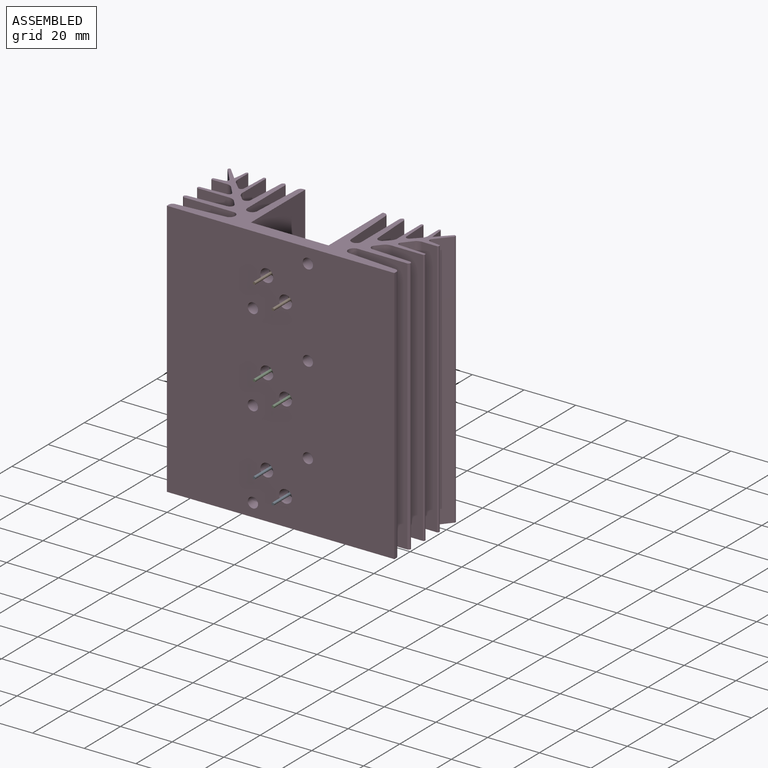
[diagram: assembled view]
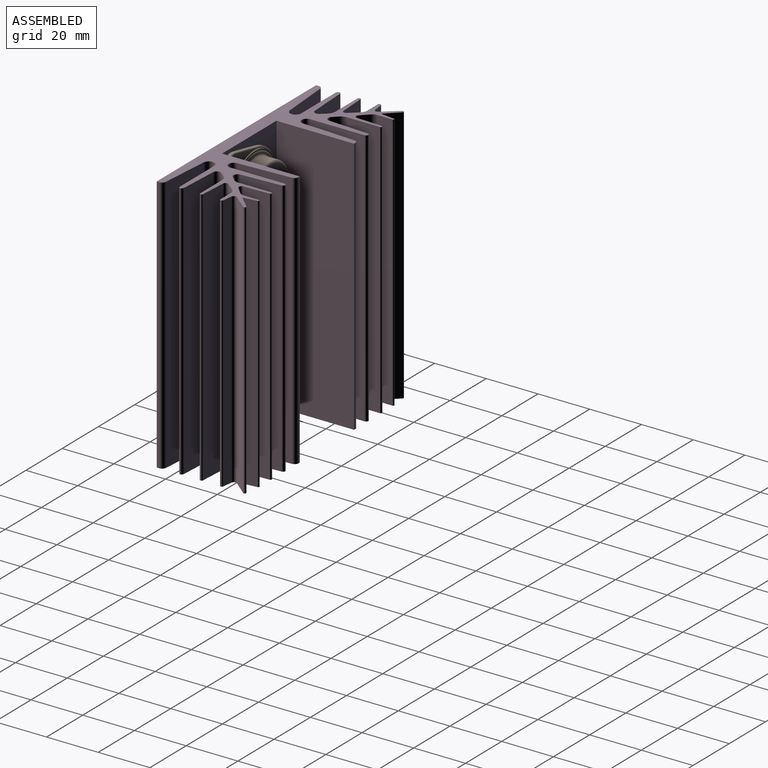
[diagram: assembled view, second angle]
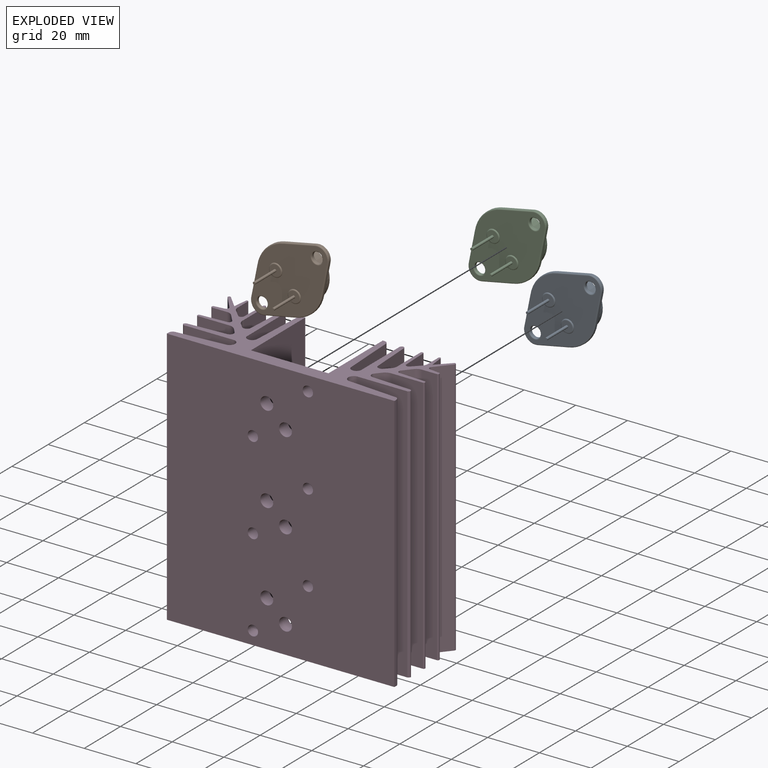
[diagram: exploded view]
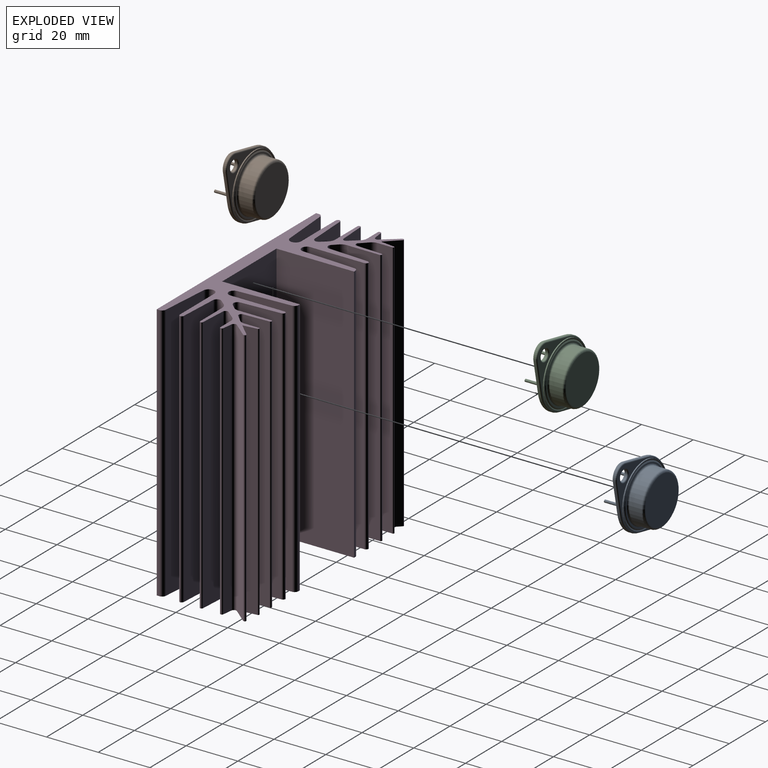
[diagram: exploded view, second angle]
ASSEMBLY  parts=4 mates=3
PART A: 59 faces, bbox 27.6x20.7x39.6 mm
  f0: torus R=2.49mm, axis (0,1,0), area 8.8mm2, adj f20,f25
  f1: torus R=2.49mm, axis (0,1,0), area 8.8mm2, adj f21,f25
  f2: torus R=2.49mm, axis (0,1,0), area 8.8mm2, adj f20,f24
  f3: torus R=2.49mm, axis (0,1,0), area 8.8mm2, adj f21,f24
  f4: torus R=4.05mm, axis (0,1,0), area 5.6mm2, adj f25,f27,f56,f58
  f5: torus R=4.05mm, axis (0,1,0), area 5.6mm2, adj f24,f27,f43,f49
  f6: torus R=11.37mm, axis (0,-1,0), area 47mm2, adj f7,f25
  f7: cone r=12.09mm half-angle=55.9deg, axis (0,1,0), area 8.2mm2, adj f6,f8
  f8: cylinder r=12.18mm len=24.36mm, axis (0,-1,0), area 33.6mm2, adj f7,f38
  f9: torus R=11.85mm, axis (0,-1,0), area 13.1mm2, adj f10,f38
  f10: cone r=11.72mm half-angle=53.2deg, axis (0,1,0), area 6mm2, adj f9,f11
  f11: torus R=11.49mm, axis (0,-1,0), area 24.1mm2, adj f10,f12
  f12: torus R=10.84mm, axis (0,-1,0), area 38.6mm2, adj f11,f37
  f13: torus R=10.53mm, axis (0,-1,0), area 65.6mm2, adj f14,f37
  f14: cylinder r=9.9mm len=19.81mm, axis (0,-1,0), area 299.2mm2, adj f13,f15
  f15: torus R=9.03mm, axis (0,-1,0), area 82.9mm2, adj f14,f23
  f16: torus R=2.11mm, axis (0,1,0), area 9.3mm2, adj f24,f33
  f17: torus R=2.13mm, axis (0,1,0), area 9.4mm2, adj f24,f35
  f18: cylinder r=0.5mm len=11.6mm, axis (0,1,0), area 36.7mm2, adj f35,f36
  f19: cylinder r=0.5mm len=11.6mm, axis (0,1,0), area 36.5mm2, adj f33,f34
  f20: cylinder r=2.09mm len=4.18mm, axis (0,-1,0), area 10.1mm2, adj f0,f2
  f21: cylinder r=2.09mm len=4.18mm, axis (0,-1,0), area 10.1mm2, adj f1,f3
  f22: cylinder r=4.38mm len=7.43mm, axis (0,-1,0), area 6.8mm2, adj f30,f31,f40,f45
  f23: plane 18.06x18.06mm, normal (0,1,0), area 256.1mm2, adj f15
  f24: plane 38.1x24.7mm, normal (0,-1,0), area 541.4mm2, adj f2,f3,f5,f16,f17,f39,f40,f41
  f25: plane 38.1x24.7mm, normal (0,1,0), area 165.6mm2, adj f0,f1,f4,f6,f45,f46,f50,f51
  f26: plane 9.83x6.53mm, normal (-0.83,0,0.55), area 9.1mm2, adj f27,f32,f43,f56
  f27: cylinder r=4.45mm len=7.64mm, axis (0,-1,0), area 7.1mm2, adj f4,f5,f26,f28
  f28: plane 9.82x6.52mm, normal (0.83,0,0.55), area 9.1mm2, adj f27,f49,f55,f58
  f29: cylinder r=12.75mm len=14.92mm, axis (0,-1,0), area 12.3mm2, adj f47,f48,f54,f55
  f30: plane 9.9x6.6mm, normal (0.83,0,-0.55), area 9.2mm2, adj f22,f42,f46,f47
  f31: plane 9.91x6.61mm, normal (-0.83,0,-0.55), area 9.2mm2, adj f22,f32,f39,f50
  f32: cylinder r=12.75mm len=14.93mm, axis (0,-1,0), area 12.3mm2, adj f26,f31,f41,f53
  f33: plane 4.21x4.21mm, normal (0,-1,0), area 13.1mm2, adj f16,f19
  f34: plane 1x1mm, normal (0,-1,0), area 0.8mm2, adj f19
  f35: plane 4.25x4.25mm, normal (0,-1,0), area 13.4mm2, adj f17,f18
  f36: plane 1.01x1.01mm, normal (0,-1,0), area 0.8mm2, adj f18
  f37: plane 21.69x21.69mm, normal (0,1,0), area 18.1mm2, adj f12,f13
  f38: plane 24.36x24.36mm, normal (0,1,0), area 22.5mm2, adj f8,f9
  f39: cylinder r=0.4mm len=10.14mm, axis (-0.55,0,0.83), area 7.5mm2, adj f24,f31,f40,f41
  f40: torus R=3.98mm, axis (0,1,0), area 5.4mm2, adj f22,f24,f39,f42
  f41: torus R=12.35mm, axis (0,1,0), area 9.9mm2, adj f24,f32,f39,f43
  f42: cylinder r=0.4mm len=10.13mm, axis (-0.55,0,-0.83), area 7.5mm2, adj f24,f30,f40,f44
  f43: cylinder r=0.4mm len=10.06mm, axis (0.55,0,0.83), area 7.4mm2, adj f5,f24,f26,f41
  f44: torus R=0.8mm, axis (0,1,0), area 0mm2, adj f24,f42,f47,f48
  f45: torus R=3.98mm, axis (0,1,0), area 5.4mm2, adj f22,f25,f46,f50
  f46: cylinder r=0.4mm len=10.13mm, axis (0.55,0,0.83), area 7.5mm2, adj f25,f30,f45,f51
  f47: cylinder r=0.4mm len=0.77mm, axis (0,-1,0), area 0mm2, adj f29,f30,f44,f51
  f48: torus R=12.35mm, axis (0,1,0), area 9.9mm2, adj f24,f29,f44,f52
  f49: cylinder r=0.4mm len=10.05mm, axis (0.55,0,-0.83), area 7.4mm2, adj f5,f24,f28,f52
  f50: cylinder r=0.4mm len=10.14mm, axis (0.55,0,-0.83), area 7.5mm2, adj f25,f31,f45,f53
  f51: torus R=0.8mm, axis (0,1,0), area 0mm2, adj f25,f46,f47,f54
  f52: torus R=0.8mm, axis (0,1,0), area 0mm2, adj f24,f48,f49,f55
  f53: torus R=12.35mm, axis (0,1,0), area 9.9mm2, adj f25,f32,f50,f56
  f54: torus R=12.35mm, axis (0,1,0), area 9.9mm2, adj f25,f29,f51,f57
  f55: cylinder r=0.4mm len=0.77mm, axis (0,-1,0), area 0mm2, adj f28,f29,f52,f57
  f56: cylinder r=0.4mm len=10.06mm, axis (-0.55,0,-0.83), area 7.4mm2, adj f4,f25,f26,f53
  f57: torus R=0.8mm, axis (0,1,0), area 0mm2, adj f25,f54,f55,f58
  f58: cylinder r=0.4mm len=10.05mm, axis (-0.55,0,0.83), area 7.4mm2, adj f4,f25,f28,f57
PART B: same geometry as A
PART C: same geometry as A
PART D: 124 faces, bbox 88x35x100 mm
  f0: plane 100x0.06mm, normal (0,1,0), area 6.3mm2, adj f8,f9,f102,f103
  f1: plane 100x0.14mm, normal (-1,0,0), area 13.8mm2, adj f8,f9,f106,f107
  f2: plane 100x0.19mm, normal (-1,0,0), area 19.4mm2, adj f8,f9,f104,f105
  f3: plane 100x1.06mm, normal (-1,0,0), area 106.1mm2, adj f8,f9,f14,f83
  f4: plane 100x0.14mm, normal (1,0,0), area 13.8mm2, adj f8,f9,f96,f99
  f5: plane 100x1.06mm, normal (1,0,0), area 106.1mm2, adj f8,f9,f14,f80
  f6: plane 100x0.19mm, normal (1,0,0), area 19.4mm2, adj f8,f9,f97,f98
  f7: plane 100x0.06mm, normal (0,1,0), area 6.3mm2, adj f8,f9,f94,f95
  f8: plane 88x35mm, normal (0,0,1), area 1036.8mm2, adj f0,f1,f2,f3,f4,f5,f6,f7
  f9: plane 88x35mm, normal (0,0,-1), area 1036.8mm2, adj f0,f1,f2,f3,f4,f5,f6,f7
  f10: plane 100x30mm, normal (0,1,0), area 2806.8mm2, adj f8,f9,f11,f17,f112,f113,f114,f115
  f11: plane 100x30mm, normal (1,0,0), area 3000mm2, adj f8,f9,f10,f12
  f12: plane 100x0.67mm, normal (0,1,0), area 67.1mm2, adj f8,f9,f11,f82
  f13: plane 100x0.12mm, normal (-1,0,0), area 11.8mm2, adj f8,f9,f109,f110
  f14: plane 100x88mm, normal (0,-1,0), area 8606.8mm2, adj f3,f5,f8,f9,f112,f113,f114,f115
  f15: plane 100x0.12mm, normal (1,0,0), area 11.8mm2, adj f8,f9,f108,f111
  f16: plane 100x0.67mm, normal (0,1,0), area 67.1mm2, adj f8,f9,f17,f81
  f17: plane 100x30mm, normal (-1,0,0), area 3000mm2, adj f8,f9,f10,f16
  f18: plane 100x18.78mm, normal (-0.08,1,0), area 1883.2mm2, adj f8,f9,f19,f83
  f19: cylinder r=2.13mm len=100mm, axis (0,0,1), area 653.2mm2, adj f8,f9,f18,f20
  f20: plane 100x19mm, normal (0,-1,0), area 1900mm2, adj f8,f9,f19,f90
  f21: cylinder r=3mm len=100mm, axis (0,0,1), area 235.9mm2, adj f8,f9,f22,f25
  f22: plane 100x5.69mm, normal (-1,0,0), area 569.2mm2, adj f8,f9,f21,f92
  f23: plane 100x9.94mm, normal (1,0.04,0), area 994.6mm2, adj f8,f9,f24,f94
  f24: cylinder r=1.02mm len=100mm, axis (0,0,1), area 237.1mm2, adj f8,f9,f23,f25
  f25: plane 100x2.79mm, normal (-0.71,0.71,0), area 394.2mm2, adj f8,f9,f21,f24
  f26: cylinder r=3.5mm len=100mm, axis (0,0,1), area 282.3mm2, adj f8,f9,f27,f30
  f27: plane 100x12.14mm, normal (-1,0,0), area 1213.6mm2, adj f8,f9,f26,f95
  f28: plane 100x15.37mm, normal (1,0.05,0), area 1539.3mm2, adj f8,f9,f29,f86
  f29: cylinder r=1.54mm len=100mm, axis (0,0,1), area 357.2mm2, adj f8,f9,f28,f30
  f30: plane 100x2.01mm, normal (-0.72,0.7,0), area 279.7mm2, adj f8,f9,f26,f29
  f31: plane 100x14.98mm, normal (0.05,1,0), area 1500.5mm2, adj f8,f9,f35,f84
  f32: plane 100x12.14mm, normal (0,-1,0), area 1213.6mm2, adj f8,f9,f33,f96
  f33: cylinder r=3.5mm len=100mm, axis (0,0,1), area 306.1mm2, adj f8,f9,f32,f34
  f34: plane 100x2.01mm, normal (0.77,-0.64,0), area 262.2mm2, adj f8,f9,f33,f35
  f35: cylinder r=1.5mm len=100mm, axis (0,0,1), area 332.2mm2, adj f8,f9,f31,f34
  f36: plane 100x3.88mm, normal (0.13,0.99,0), area 391.3mm2, adj f8,f9,f38,f97
  f37: plane 100x5.79mm, normal (0.77,-0.64,0), area 754.8mm2, adj f8,f9,f38,f108
  f38: cylinder r=1mm len=100mm, axis (0,0,1), area 213.9mm2, adj f8,f9,f36,f37
  f39: plane 100x5.45mm, normal (0.99,0.12,0), area 549.1mm2, adj f8,f9,f40,f93
  f40: plane 100x5.01mm, normal (-0.72,0.7,0), area 696.5mm2, adj f8,f9,f39,f111
  f41: plane 100x20.55mm, normal (1,0.05,0), area 2057.9mm2, adj f8,f9,f42,f81
  f42: cylinder r=1.95mm len=100mm, axis (0,0,1), area 601.8mm2, adj f8,f9,f41,f43
  f43: plane 100x20.88mm, normal (-1,0,0), area 2088.1mm2, adj f8,f9,f42,f87
  f44: plane 100x18.78mm, normal (0.08,1,0), area 1883.2mm2, adj f8,f9,f46,f80
  f45: plane 100x19mm, normal (0,-1,0), area 1900mm2, adj f8,f9,f46,f85
  f46: cylinder r=2.13mm len=100mm, axis (0,0,1), area 653.2mm2, adj f8,f9,f44,f45
  f47: plane 100x3.88mm, normal (-0.13,0.99,0), area 391.3mm2, adj f8,f9,f48,f104
  f48: cylinder r=1mm len=100mm, axis (0,0,1), area 213.9mm2, adj f8,f9,f47,f49
  f49: plane 100x5.79mm, normal (-0.77,-0.64,0), area 754.8mm2, adj f8,f9,f48,f109
  f50: plane 100x10.27mm, normal (-0.06,1,0), area 1028.3mm2, adj f8,f9,f51,f106
  f51: cylinder r=1mm len=100mm, axis (0,0,1), area 220.8mm2, adj f8,f9,f50,f52
  f52: plane 100x3.36mm, normal (-0.77,-0.64,0), area 438.1mm2, adj f8,f9,f51,f53
  f53: cylinder r=3mm len=100mm, axis (0,0,1), area 262.4mm2, adj f8,f9,f52,f54
  f54: plane 100x5.83mm, normal (0,-1,0), area 583.2mm2, adj f8,f9,f53,f105
  f55: plane 100x14.98mm, normal (-0.05,1,0), area 1500.5mm2, adj f8,f9,f56,f91
  f56: cylinder r=1.5mm len=100mm, axis (0,0,1), area 332.2mm2, adj f8,f9,f55,f57
  f57: plane 100x2.01mm, normal (-0.77,-0.64,0), area 262.2mm2, adj f8,f9,f56,f58
  f58: cylinder r=3.5mm len=100mm, axis (0,0,1), area 306.1mm2, adj f8,f9,f57,f59
  f59: plane 100x12.14mm, normal (0,-1,0), area 1213.6mm2, adj f8,f9,f58,f107
  f60: plane 100x20.55mm, normal (-1,0.05,0), area 2057.9mm2, adj f8,f9,f62,f82
  f61: plane 100x20.88mm, normal (1,0,0), area 2088.1mm2, adj f8,f9,f62,f88
  f62: cylinder r=1.95mm len=100mm, axis (0,0,1), area 601.8mm2, adj f8,f9,f60,f61
  f63: plane 100x10.27mm, normal (0.06,1,0), area 1028.3mm2, adj f8,f9,f67,f99
  f64: plane 100x5.83mm, normal (0,-1,0), area 583.2mm2, adj f8,f9,f65,f98
  f65: cylinder r=3mm len=100mm, axis (0,0,1), area 262.4mm2, adj f8,f9,f64,f66
  f66: plane 100x3.36mm, normal (0.77,-0.64,0), area 438.1mm2, adj f8,f9,f65,f67
  f67: cylinder r=1mm len=100mm, axis (0,0,1), area 220.8mm2, adj f8,f9,f63,f66
  f68: plane 100x5.45mm, normal (-0.99,0.12,0), area 549.1mm2, adj f8,f9,f69,f101
  f69: plane 100x5.01mm, normal (0.72,0.7,0), area 696.5mm2, adj f8,f9,f68,f110
  f70: plane 100x9.94mm, normal (-1,0.04,0), area 994.6mm2, adj f8,f9,f74,f102
  f71: plane 100x5.69mm, normal (1,0,0), area 569.2mm2, adj f8,f9,f72,f100
  f72: cylinder r=3mm len=100mm, axis (0,0,1), area 235.9mm2, adj f8,f9,f71,f73
  f73: plane 100x2.79mm, normal (0.71,0.71,0), area 394.2mm2, adj f8,f9,f72,f74
  f74: cylinder r=1.02mm len=100mm, axis (0,0,1), area 237.1mm2, adj f8,f9,f70,f73
  f75: plane 100x15.37mm, normal (-1,0.05,0), area 1539.3mm2, adj f8,f9,f79,f89
  f76: plane 100x12.14mm, normal (1,0,0), area 1213.6mm2, adj f8,f9,f77,f103
  f77: cylinder r=3.5mm len=100mm, axis (0,0,1), area 282.3mm2, adj f8,f9,f76,f78
  f78: plane 100x2.01mm, normal (0.72,0.7,0), area 279.7mm2, adj f8,f9,f77,f79
  f79: cylinder r=1.54mm len=100mm, axis (0,0,1), area 357.2mm2, adj f8,f9,f75,f78
  f80: cylinder r=1.5mm len=100mm, axis (0,0,1), area 224.2mm2, adj f5,f8,f9,f44
  f81: cylinder r=1.5mm len=100mm, axis (0,0,-1), area 228.1mm2, adj f8,f9,f16,f41
  f82: cylinder r=1.5mm len=100mm, axis (0,0,-1), area 228.1mm2, adj f8,f9,f12,f60
  f83: cylinder r=1.5mm len=100mm, axis (0,0,1), area 224.2mm2, adj f3,f8,f9,f18
  f84: cylinder r=1mm len=100mm, axis (0,0,1), area 133mm2, adj f8,f9,f31,f85
  f85: cylinder r=1mm len=100mm, axis (0,0,1), area 138.3mm2, adj f8,f9,f45,f84
  f86: cylinder r=1mm len=100mm, axis (0,0,-1), area 137.1mm2, adj f8,f9,f28,f87
  f87: cylinder r=1mm len=100mm, axis (0,0,-1), area 142.5mm2, adj f8,f9,f43,f86
  f88: cylinder r=1mm len=100mm, axis (0,0,-1), area 142.5mm2, adj f8,f9,f61,f89
  f89: cylinder r=1mm len=100mm, axis (0,0,-1), area 137.1mm2, adj f8,f9,f75,f88
  f90: cylinder r=1mm len=100mm, axis (0,0,1), area 138.3mm2, adj f8,f9,f20,f91
  f91: cylinder r=1mm len=100mm, axis (0,0,1), area 133mm2, adj f8,f9,f55,f90
  f92: cylinder r=0.5mm len=100mm, axis (0,0,-1), area 71.5mm2, adj f8,f9,f22,f93
  f93: cylinder r=0.5mm len=100mm, axis (0,0,-1), area 65.7mm2, adj f8,f9,f39,f92
  f94: cylinder r=0.5mm len=100mm, axis (0,0,-1), area 76.5mm2, adj f7,f8,f9,f23
  f95: cylinder r=0.5mm len=100mm, axis (0,0,-1), area 78.5mm2, adj f7,f8,f9,f27
  f96: cylinder r=0.5mm len=100mm, axis (0,0,1), area 78.5mm2, adj f4,f8,f9,f32
  f97: cylinder r=0.5mm len=100mm, axis (0,0,1), area 72.2mm2, adj f6,f8,f9,f36
  f98: cylinder r=0.5mm len=100mm, axis (0,0,1), area 78.5mm2, adj f6,f8,f9,f64
  f99: cylinder r=0.5mm len=100mm, axis (0,0,1), area 75.6mm2, adj f4,f8,f9,f63
  f100: cylinder r=0.5mm len=100mm, axis (0,0,-1), area 71.5mm2, adj f8,f9,f71,f101
  f101: cylinder r=0.5mm len=100mm, axis (0,0,-1), area 65.7mm2, adj f8,f9,f68,f100
  f102: cylinder r=0.5mm len=100mm, axis (0,0,-1), area 76.5mm2, adj f0,f8,f9,f70
  f103: cylinder r=0.5mm len=100mm, axis (0,0,-1), area 78.5mm2, adj f0,f8,f9,f76
  f104: cylinder r=0.5mm len=100mm, axis (0,0,1), area 72.2mm2, adj f2,f8,f9,f47
  f105: cylinder r=0.5mm len=100mm, axis (0,0,1), area 78.5mm2, adj f2,f8,f9,f54
  f106: cylinder r=0.5mm len=100mm, axis (0,0,1), area 75.6mm2, adj f1,f8,f9,f50
  f107: cylinder r=0.5mm len=100mm, axis (0,0,1), area 78.5mm2, adj f1,f8,f9,f59
  f108: cylinder r=0.5mm len=100mm, axis (0,0,1), area 34.8mm2, adj f8,f9,f15,f37
  f109: cylinder r=0.5mm len=100mm, axis (0,0,1), area 34.8mm2, adj f8,f9,f13,f49
  f110: cylinder r=0.5mm len=100mm, axis (0,0,1), area 118.7mm2, adj f8,f9,f13,f69
  f111: cylinder r=0.5mm len=100mm, axis (0,0,1), area 118.7mm2, adj f8,f9,f15,f40
  f112: cylinder r=2.5mm len=5mm, axis (0,-1,0), area 78.5mm2, adj f10,f14
  f113: cylinder r=2mm len=5mm, axis (0,-1,0), area 62.8mm2, adj f10,f14
  f114: cylinder r=2mm len=5mm, axis (0,-1,0), area 62.8mm2, adj f10,f14
  f115: cylinder r=2.5mm len=5mm, axis (0,-1,0), area 78.5mm2, adj f10,f14
  f116: cylinder r=2.5mm len=5mm, axis (0,-1,0), area 78.5mm2, adj f10,f14
  f117: cylinder r=2mm len=5mm, axis (0,-1,0), area 62.8mm2, adj f10,f14
  f118: cylinder r=2mm len=5mm, axis (0,-1,0), area 62.8mm2, adj f10,f14
  f119: cylinder r=2.5mm len=5mm, axis (0,-1,0), area 78.5mm2, adj f10,f14
  f120: cylinder r=2.5mm len=5mm, axis (0,-1,0), area 78.5mm2, adj f10,f14
  f121: cylinder r=2mm len=5mm, axis (0,-1,0), area 62.8mm2, adj f10,f14
  f122: cylinder r=2mm len=5mm, axis (0,-1,0), area 62.8mm2, adj f10,f14
  f123: cylinder r=2.5mm len=5mm, axis (0,-1,0), area 78.5mm2, adj f10,f14
PLACE A rot(axis=(0,1,0),45deg) t=(-7.36,-84.69,-100.85)mm
PLACE B rot(axis=(0,1,0),45deg) t=(-7.36,-84.69,-32.85)mm
PLACE C rot(axis=(0,1,0),45deg) t=(-7.36,-84.69,-66.85)mm
PLACE D rot(axis=(0.92,0,0.38),0deg) t=(-7.27,-89.69,-116.59)mm
MATE fastened B.f16 <-> D.f116  axis (0,-1,0) through (-5.39,-84.69,-37.92)mm
MATE fastened C.f16 <-> D.f120  axis (0,-1,0) through (-5.39,-84.69,-71.92)mm
MATE fastened A.f16 <-> D.f115  axis (0,-1,0) through (-5.39,-84.69,-105.92)mm
